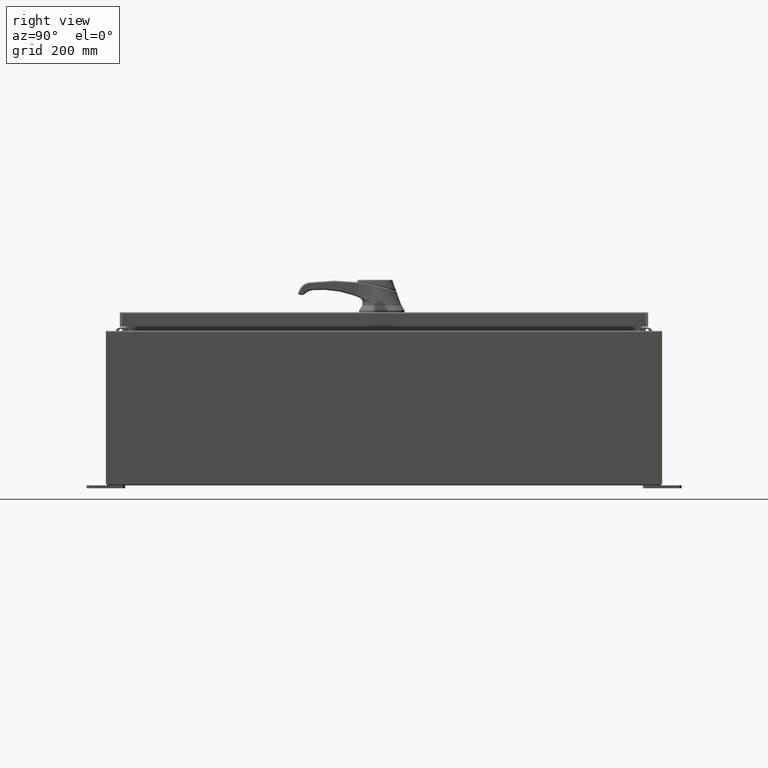
[diagram: clean part render]
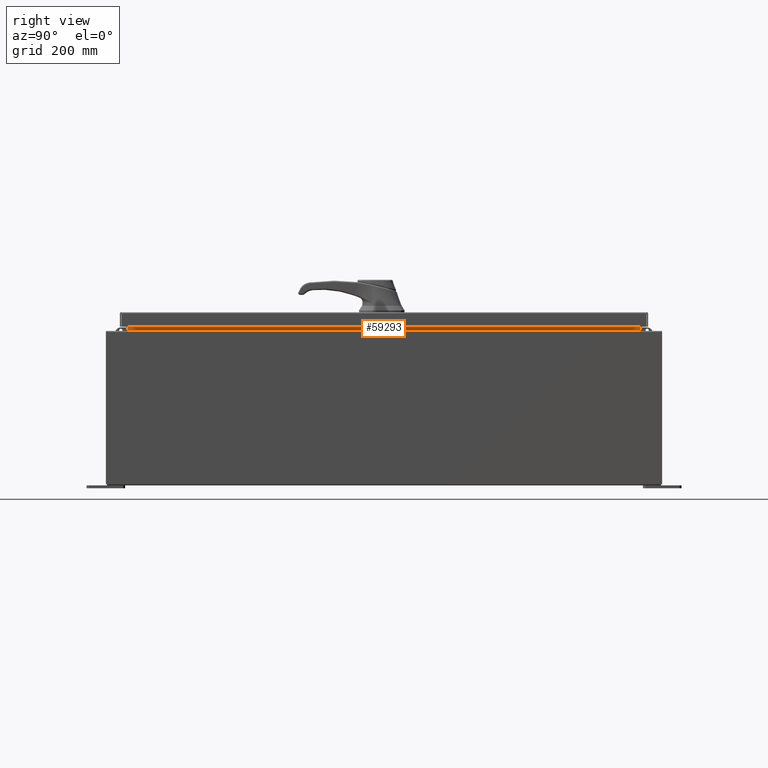
[diagram: same view with one face highlighted and labeled with its STEP entity id]
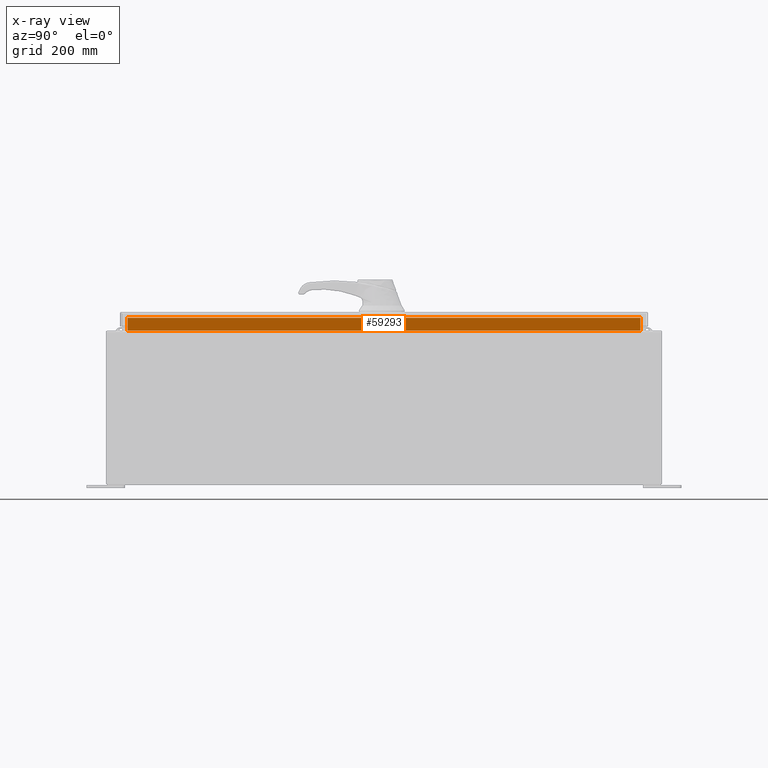
[diagram: x-ray of the same camera — body ghosted, the highlighted face saturated]
A machine part, right view. The second image highlights one B-rep face of the part: STEP entity #59293.
The next image is the same camera in x-ray: the body ghosted, the highlighted face saturated — about 0% of this face is hidden behind the body in this view.
In plain terms, the highlighted planar face has unit normal (1, -0, -0).
Its self-contained STEP definition (entity closure, byte-faithful):
#1128 = CARTESIAN_POINT ( 'NONE',  ( 10.69970000000003700, 16.59374999999999600, 9.938300000000014100 ) ) ;
#4743 = VERTEX_POINT ( 'NONE', #19089 ) ;
#5427 = VERTEX_POINT ( 'NONE', #1128 ) ;
#7876 = VERTEX_POINT ( 'NONE', #74829 ) ;
#8723 = EDGE_LOOP ( 'NONE', ( #67704, #90475, #90816, #71373 ) ) ;
#9290 = LINE ( 'NONE', #115334, #34665 ) ;
#14434 = DIRECTION ( 'NONE',  ( -2.361913319930198800E-015, 0.0000000000000000000, -1.000000000000000000 ) ) ;
#19089 = CARTESIAN_POINT ( 'NONE',  ( 10.69970000000004600, 16.59374999999999600, 10.76290000000000700 ) ) ;
#20644 = LINE ( 'NONE', #70739, #118954 ) ;
#20866 = EDGE_CURVE ( 'NONE', #7876, #89422, #119193, .T. ) ;
#22507 = EDGE_CURVE ( 'NONE', #4743, #5427, #20644, .T. ) ;
#34665 = VECTOR ( 'NONE', #87086, 39.37007874015748100 ) ;
#40241 = VECTOR ( 'NONE', #72620, 39.37007874015748100 ) ;
#42785 = CARTESIAN_POINT ( 'NONE',  ( 10.69970000000004600, -16.59375000000000000, 10.76290000000000700 ) ) ;
#52419 = DIRECTION ( 'NONE',  ( 0.0000000000000000000, 1.000000000000000000, 0.0000000000000000000 ) ) ;
#59293 = ADVANCED_FACE ( 'NONE', ( #69743 ), #118922, .T. ) ;
#62047 = CARTESIAN_POINT ( 'NONE',  ( 10.69970000000001200, -1.664207732215685800E-030, -2.527176394925717600E-014 ) ) ;
#63116 = CARTESIAN_POINT ( 'NONE',  ( 10.69970000000003900, -16.59375000000000000, 10.85060000000001100 ) ) ;
#67704 = ORIENTED_EDGE ( 'NONE', *, *, #22507, .F. ) ;
#69743 = FACE_OUTER_BOUND ( 'NONE', #8723, .T. ) ;
#70739 = CARTESIAN_POINT ( 'NONE',  ( 10.69970000000003700, 16.59374999999999600, 9.925300000000008900 ) ) ;
#71373 = ORIENTED_EDGE ( 'NONE', *, *, #89215, .F. ) ;
#71560 = DIRECTION ( 'NONE',  ( 1.000000000000000000, -1.555377937900767200E-031, -2.361913319930198800E-015 ) ) ;
#72129 = VECTOR ( 'NONE', #52419, 39.37007874015748100 ) ;
#72620 = DIRECTION ( 'NONE',  ( 2.361913319930198800E-015, -0.0000000000000000000, 1.000000000000000000 ) ) ;
#74829 = CARTESIAN_POINT ( 'NONE',  ( 10.69970000000003700, -16.59374999999999600, 9.938300000000014100 ) ) ;
#87086 = DIRECTION ( 'NONE',  ( 0.0000000000000000000, -1.000000000000000000, 1.975573690333478700E-016 ) ) ;
#88145 = EDGE_CURVE ( 'NONE', #89422, #4743, #94413, .T. ) ;
#89215 = EDGE_CURVE ( 'NONE', #5427, #7876, #9290, .T. ) ;
#89422 = VERTEX_POINT ( 'NONE', #108676 ) ;
#90475 = ORIENTED_EDGE ( 'NONE', *, *, #88145, .F. ) ;
#90816 = ORIENTED_EDGE ( 'NONE', *, *, #20866, .F. ) ;
#94413 = LINE ( 'NONE', #42785, #72129 ) ;
#108676 = CARTESIAN_POINT ( 'NONE',  ( 10.69970000000003900, -16.59375000000000000, 10.76290000000000700 ) ) ;
#108973 = DIRECTION ( 'NONE',  ( -2.361913319930198800E-015, -0.0000000000000000000, -1.000000000000000000 ) ) ;
#114480 = AXIS2_PLACEMENT_3D ( 'NONE', #62047, #71560, #14434 ) ;
#115334 = CARTESIAN_POINT ( 'NONE',  ( 10.69970000000003400, 16.59374999999999600, 9.938300000000008800 ) ) ;
#118922 = PLANE ( 'NONE',  #114480 ) ;
#118954 = VECTOR ( 'NONE', #108973, 39.37007874015748100 ) ;
#119193 = LINE ( 'NONE', #63116, #40241 ) ;